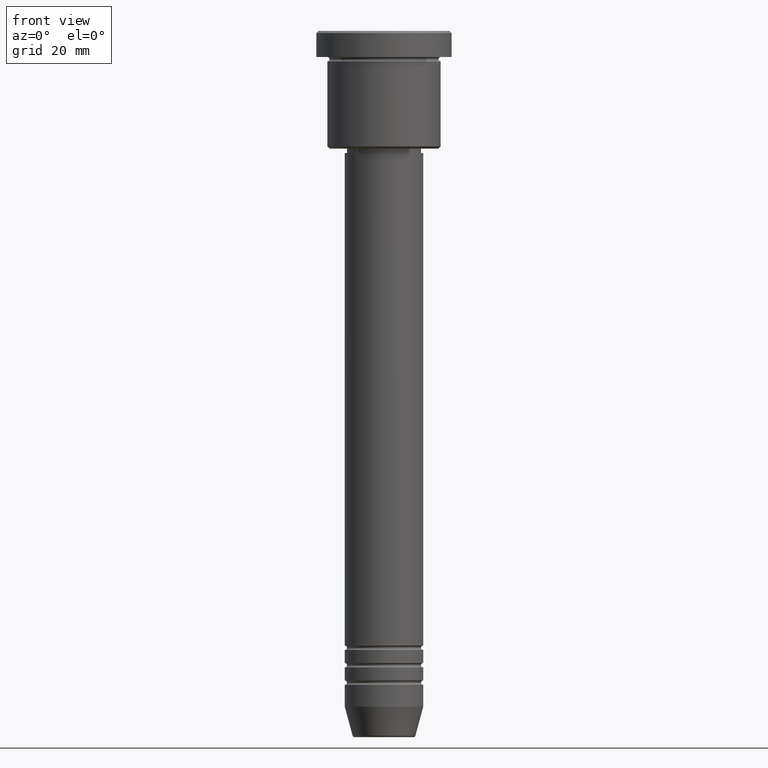
[diagram: clean part render]
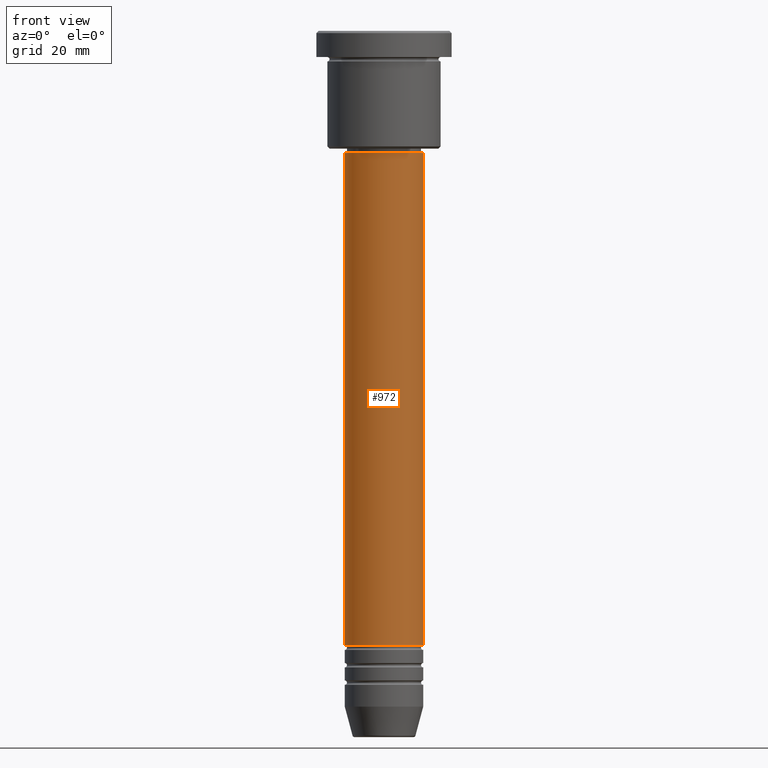
[diagram: same view with one face highlighted and labeled with its STEP entity id]
A machine part, front view. The second image highlights one B-rep face of the part: STEP entity #972.
In plain terms, the highlighted cylindrical surface (partial cylindrical patch) has radius 9 mm, axis along (-0, -0, 1).
Its self-contained STEP definition (entity closure, byte-faithful):
#8 = EDGE_CURVE ( 'NONE', #615, #81, #932, .T. ) ;
#60 = DIRECTION ( 'NONE',  ( 1.000000000000000000, 0.000000000000000000, 0.000000000000000000 ) ) ;
#63 = AXIS2_PLACEMENT_3D ( 'NONE', #657, #492, #480 ) ;
#70 = LINE ( 'NONE', #440, #478 ) ;
#81 = VERTEX_POINT ( 'NONE', #355 ) ;
#113 = CYLINDRICAL_SURFACE ( 'NONE', #63, 9.000000000000000000 ) ;
#193 = DIRECTION ( 'NONE',  ( -0.000000000000000000, -0.000000000000000000, 1.000000000000000000 ) ) ;
#256 = EDGE_CURVE ( 'NONE', #681, #615, #1019, .T. ) ;
#288 = CARTESIAN_POINT ( 'NONE',  ( 0.000000000000000000, 0.000000000000000000, -28.00000000000001776 ) ) ;
#293 = DIRECTION ( 'NONE',  ( 1.000000000000000000, 0.000000000000000000, 0.000000000000000000 ) ) ;
#297 = CARTESIAN_POINT ( 'NONE',  ( -9.000000000000000000, 1.102182119232617714E-15, 0.000000000000000000 ) ) ;
#324 = VECTOR ( 'NONE', #193, 1000.000000000000000 ) ;
#342 = AXIS2_PLACEMENT_3D ( 'NONE', #805, #895, #60 ) ;
#355 = CARTESIAN_POINT ( 'NONE',  ( 8.999999999999998224, 0.000000000000000000, -28.00000000000001776 ) ) ;
#365 = ORIENTED_EDGE ( 'NONE', *, *, #475, .T. ) ;
#385 = CARTESIAN_POINT ( 'NONE',  ( -8.999999999999998224, 1.102182119232617714E-15, -28.00000000000001776 ) ) ;
#440 = CARTESIAN_POINT ( 'NONE',  ( 9.000000000000000000, 0.000000000000000000, 0.000000000000000000 ) ) ;
#475 = EDGE_CURVE ( 'NONE', #961, #81, #70, .T. ) ;
#478 = VECTOR ( 'NONE', #812, 1000.000000000000000 ) ;
#480 = DIRECTION ( 'NONE',  ( 1.000000000000000000, 0.000000000000000000, 0.000000000000000000 ) ) ;
#491 = ORIENTED_EDGE ( 'NONE', *, *, #881, .T. ) ;
#492 = DIRECTION ( 'NONE',  ( -0.000000000000000000, -0.000000000000000000, 1.000000000000000000 ) ) ;
#569 = CARTESIAN_POINT ( 'NONE',  ( -9.000000000000001776, 1.102182119232617911E-15, -140.9999999999999147 ) ) ;
#615 = VERTEX_POINT ( 'NONE', #385 ) ;
#623 = EDGE_LOOP ( 'NONE', ( #1099, #491, #365, #1156 ) ) ;
#657 = CARTESIAN_POINT ( 'NONE',  ( 0.000000000000000000, 0.000000000000000000, 0.000000000000000000 ) ) ;
#681 = VERTEX_POINT ( 'NONE', #569 ) ;
#772 = CARTESIAN_POINT ( 'NONE',  ( 9.000000000000001776, 0.000000000000000000, -140.9999999999999147 ) ) ;
#805 = CARTESIAN_POINT ( 'NONE',  ( 0.000000000000000000, 0.000000000000000000, -140.9999999999999147 ) ) ;
#812 = DIRECTION ( 'NONE',  ( -0.000000000000000000, -0.000000000000000000, 1.000000000000000000 ) ) ;
#839 = FACE_OUTER_BOUND ( 'NONE', #623, .T. ) ;
#881 = EDGE_CURVE ( 'NONE', #681, #961, #1012, .T. ) ;
#895 = DIRECTION ( 'NONE',  ( -0.000000000000000000, -0.000000000000000000, 1.000000000000000000 ) ) ;
#917 = DIRECTION ( 'NONE',  ( -0.000000000000000000, -0.000000000000000000, 1.000000000000000000 ) ) ;
#932 = CIRCLE ( 'NONE', #1005, 8.999999999999998224 ) ;
#961 = VERTEX_POINT ( 'NONE', #772 ) ;
#972 = ADVANCED_FACE ( 'NONE', ( #839 ), #113, .T. ) ;
#1005 = AXIS2_PLACEMENT_3D ( 'NONE', #288, #917, #293 ) ;
#1012 = CIRCLE ( 'NONE', #342, 9.000000000000001776 ) ;
#1019 = LINE ( 'NONE', #297, #324 ) ;
#1099 = ORIENTED_EDGE ( 'NONE', *, *, #256, .F. ) ;
#1156 = ORIENTED_EDGE ( 'NONE', *, *, #8, .F. ) ;